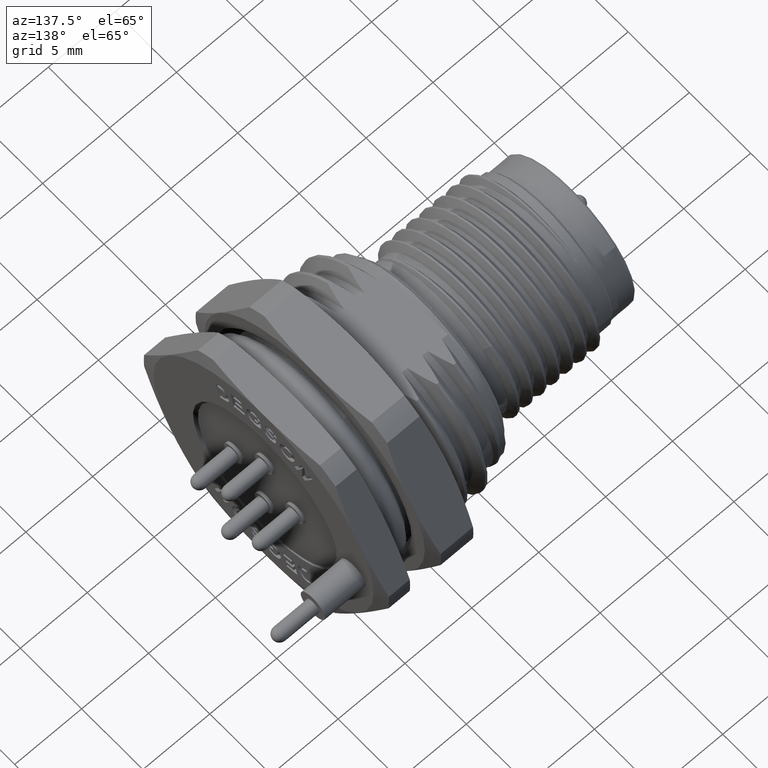
[diagram: clean part render]
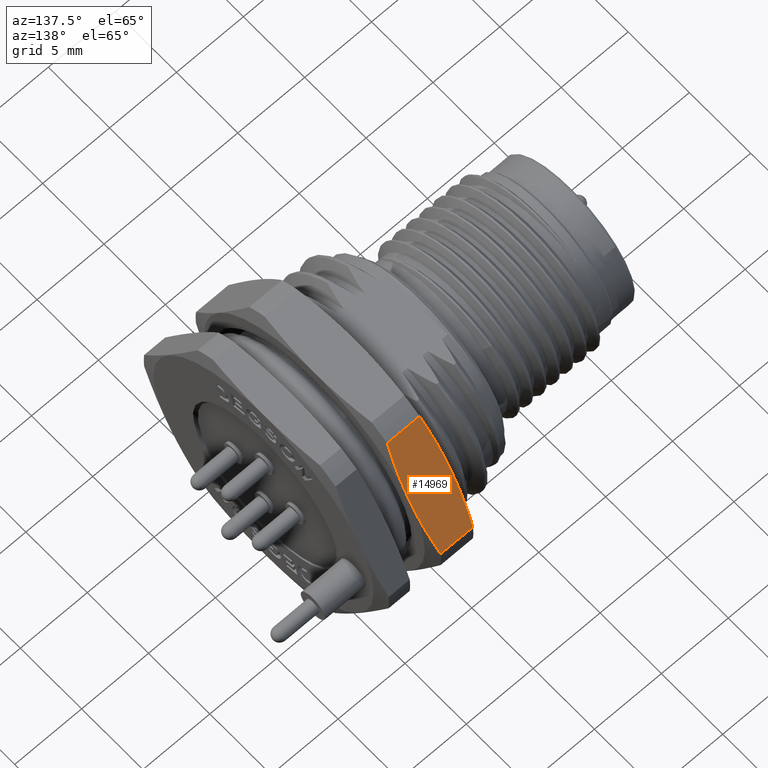
[diagram: same view with one face highlighted and labeled with its STEP entity id]
A machine part, auxiliary view. The second image highlights one B-rep face of the part: STEP entity #14969.
In plain terms, the highlighted planar face has unit normal (0, 0.8661, 0.4999).
Its self-contained STEP definition (entity closure, byte-faithful):
#2557=CARTESIAN_POINT('',(1.731270659488E1,5.615423469015E0,8.274479999591E0));
#2558=CARTESIAN_POINT('',(1.735910252996E1,5.800643905148E0,7.953611097311E0));
#2559=CARTESIAN_POINT('',(1.744159026994E1,6.168710778907E0,7.315985918281E0));
#2560=CARTESIAN_POINT('',(1.753121094184E1,6.706610659470E0,6.384148439566E0));
#2561=CARTESIAN_POINT('',(1.758749087720E1,7.252099419311E0,5.439164272421E0));
#2562=CARTESIAN_POINT('',(1.759999999999E1,7.613700111691E0,4.812740862301E0));
#2563=CARTESIAN_POINT('',(1.76E1,7.794579001039E0,4.499393092030E0));
#2573=DIRECTION('',(1.E0,0.E0,2.050701781996E-14));
#2574=VECTOR('',#2573,2.425413189762E0);
#2575=CARTESIAN_POINT('',(1.488729340512E1,9.973734533931E0,7.243061829549E-1));
#2576=LINE('',#2575,#2574);
#2577=DIRECTION('',(-1.E0,0.E0,0.E0));
#2578=VECTOR('',#2577,2.425413189762E0);
#2579=CARTESIAN_POINT('',(1.731270659488E1,5.615423469015E0,8.274479999591E0));
#2580=LINE('',#2579,#2578);
#2601=CARTESIAN_POINT('',(1.488729340512E1,9.973734533931E0,7.243061829549E-1));
#2602=CARTESIAN_POINT('',(1.484089993759E1,9.788523948657E0,1.045158019980E0));
#2603=CARTESIAN_POINT('',(1.475841359326E1,9.420470238673E0,1.682760394580E0));
#2604=CARTESIAN_POINT('',(1.466878548765E1,8.882522656206E0,2.614680510279E0));
#2605=CARTESIAN_POINT('',(1.461250980871E1,8.337060706551E0,3.559618232459E0));
#2606=CARTESIAN_POINT('',(1.459999999999E1,7.975458043528E0,4.186045056465E0));
#2607=CARTESIAN_POINT('',(1.46E1,7.794579001041E0,4.499393092028E0));
#2759=CARTESIAN_POINT('',(1.76E1,7.794579001039E0,4.499393092030E0));
#2760=CARTESIAN_POINT('',(1.760000000001E1,7.975464214900E0,4.186034365413E0));
#2761=CARTESIAN_POINT('',(1.758748933184E1,8.337076123476E0,3.559591524759E0));
#2762=CARTESIAN_POINT('',(1.753121179377E1,8.882542616593E0,2.614645931657E0));
#2763=CARTESIAN_POINT('',(1.744158322375E1,9.420485518832E0,1.682733923809E0));
#2764=CARTESIAN_POINT('',(1.735909853532E1,9.788530045054E0,1.045147458811E0));
#2765=CARTESIAN_POINT('',(1.731270659488E1,9.973734533931E0,7.243061829550E-1));
#8387=CARTESIAN_POINT('',(1.46E1,7.794579001041E0,4.499393092028E0));
#8388=CARTESIAN_POINT('',(1.460000000001E1,7.613693756899E0,4.812751871103E0));
#8389=CARTESIAN_POINT('',(1.461251000776E1,7.252083544066E0,5.439191774098E0));
#8390=CARTESIAN_POINT('',(1.466879185786E1,6.706590103623E0,6.384184049741E0));
#8391=CARTESIAN_POINT('',(1.475841300792E1,6.168695043154E0,7.316013178306E0));
#8392=CARTESIAN_POINT('',(1.484089904267E1,5.800637626936E0,7.953621973448E0));
#8393=CARTESIAN_POINT('',(1.488729340512E1,5.615423469015E0,8.274479999591E0));
#11037=CARTESIAN_POINT('',(1.76E1,7.794579001025E0,4.499393092047E0));
#11038=VERTEX_POINT('',#11037);
#11039=VERTEX_POINT('',#2765);
#11041=CARTESIAN_POINT('',(1.488729340512E1,9.973734533932E0,
7.243061829549E-1));
#11043=VERTEX_POINT('',#11041);
#11061=CARTESIAN_POINT('',(1.731270659488E1,5.615423469016E0,8.274479999592E0));
#11063=VERTEX_POINT('',#11061);
#11081=CARTESIAN_POINT('',(1.488729340512E1,5.615423469015E0,8.274479999591E0));
#11082=VERTEX_POINT('',#11081);
#11086=CARTESIAN_POINT('',(1.46E1,7.794579001025E0,4.499393092047E0));
#11087=VERTEX_POINT('',#11086);
#14952=CARTESIAN_POINT('',(1.61E1,7.794579001473E0,4.499393091273E0));
#14953=DIRECTION('',(0.E0,8.660643334970E-1,4.999325656971E-1));
#14954=DIRECTION('',(0.E0,4.999325656971E-1,-8.660643334970E-1));
#14955=AXIS2_PLACEMENT_3D('',#14952,#14953,#14954);
#14956=PLANE('',#14955);
#14958=ORIENTED_EDGE('',*,*,#14957,.T.);
#14960=ORIENTED_EDGE('',*,*,#14959,.F.);
#14961=ORIENTED_EDGE('',*,*,#14944,.F.);
#14962=ORIENTED_EDGE('',*,*,#14933,.T.);
#14964=ORIENTED_EDGE('',*,*,#14963,.F.);
#14966=ORIENTED_EDGE('',*,*,#14965,.F.);
#14967=EDGE_LOOP('',(#14958,#14960,#14961,#14962,#14964,#14966));
#14968=FACE_OUTER_BOUND('',#14967,.F.);
#14969=ADVANCED_FACE('',(#14968),#14956,.T.);
#2564=B_SPLINE_CURVE_WITH_KNOTS('',3,(#2557,#2558,#2559,#2560,#2561,#2562,
#2563),.UNSPECIFIED.,.F.,.F.,(4,1,1,1,4),(0.E0,2.5E-1,5.E-1,7.5E-1,1.E0),
.UNSPECIFIED.);
#2608=B_SPLINE_CURVE_WITH_KNOTS('',3,(#2601,#2602,#2603,#2604,#2605,#2606,
#2607),.UNSPECIFIED.,.F.,.F.,(4,1,1,1,4),(0.E0,2.5E-1,5.E-1,7.5E-1,1.E0),
.UNSPECIFIED.);
#2766=B_SPLINE_CURVE_WITH_KNOTS('',3,(#2759,#2760,#2761,#2762,#2763,#2764,
#2765),.UNSPECIFIED.,.F.,.F.,(4,1,1,1,4),(0.E0,2.5E-1,5.E-1,7.5E-1,1.E0),
.UNSPECIFIED.);
#8394=B_SPLINE_CURVE_WITH_KNOTS('',3,(#8387,#8388,#8389,#8390,#8391,#8392,
#8393),.UNSPECIFIED.,.F.,.F.,(4,1,1,1,4),(0.E0,2.5E-1,5.E-1,7.5E-1,1.E0),
.UNSPECIFIED.);
#14933=EDGE_CURVE('',#11063,#11082,#2580,.T.);
#14944=EDGE_CURVE('',#11063,#11038,#2564,.T.);
#14957=EDGE_CURVE('',#11043,#11039,#2576,.T.);
#14959=EDGE_CURVE('',#11038,#11039,#2766,.T.);
#14963=EDGE_CURVE('',#11087,#11082,#8394,.T.);
#14965=EDGE_CURVE('',#11043,#11087,#2608,.T.);